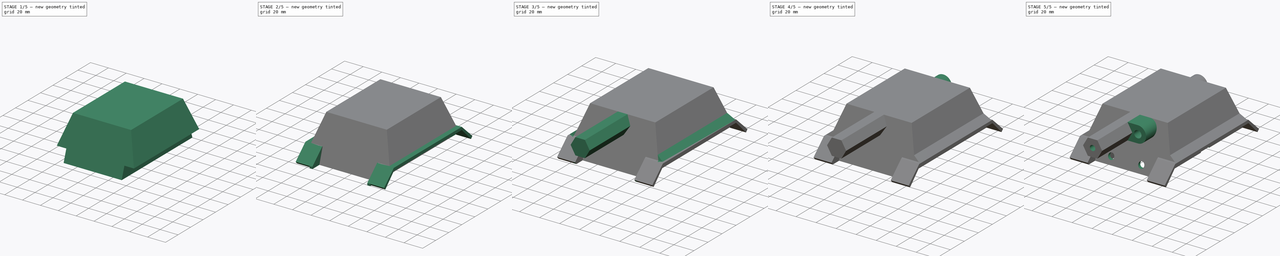
[diagram: build sequence overview — one tinted view per stage of 5, left to right]
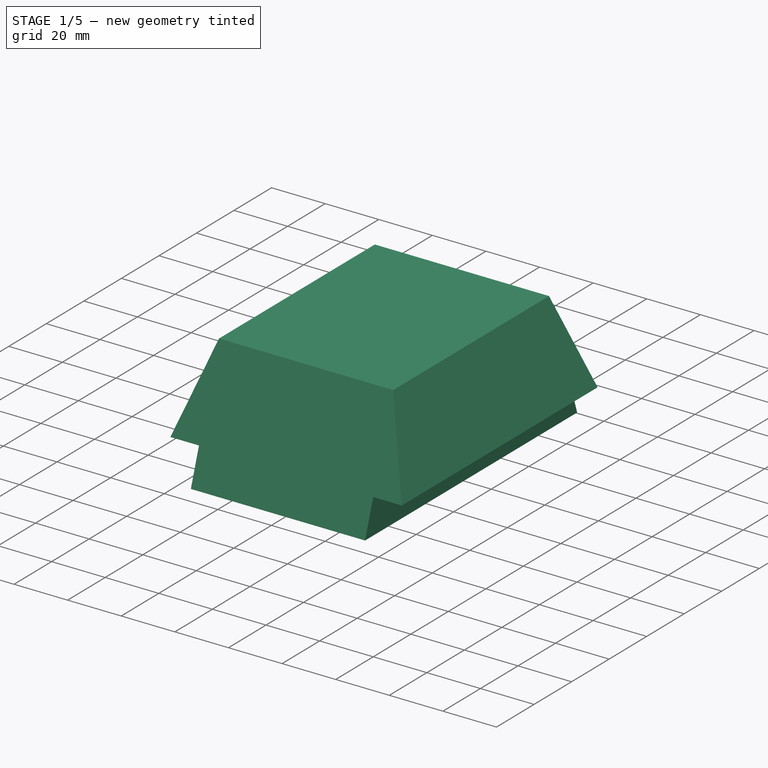
[diagram: stage 1 of 5 — iso view after this stage's code; geometry added in this stage tinted green]
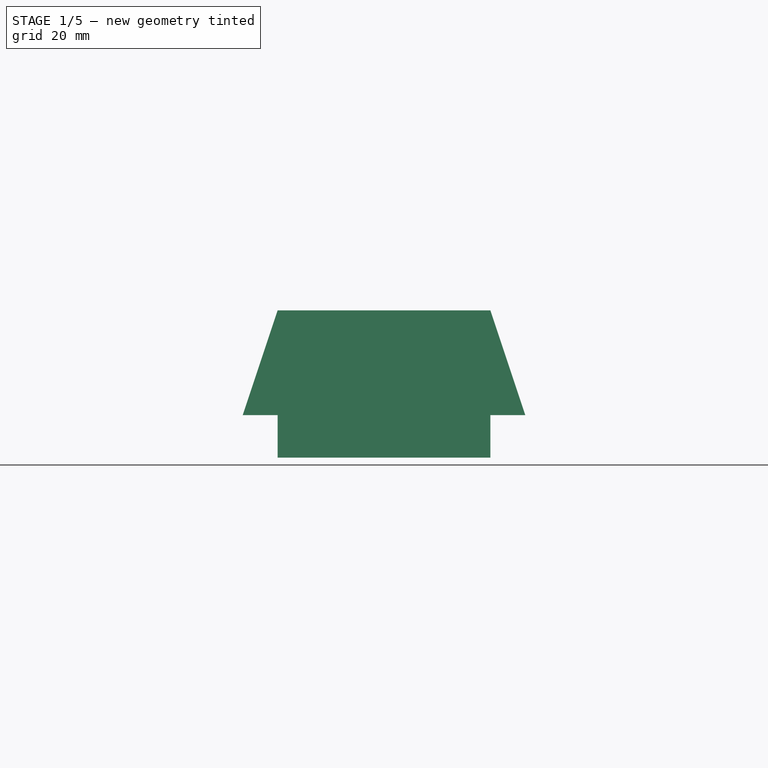
[diagram: stage 1 of 5 — front view after this stage's code; geometry added in this stage tinted green]
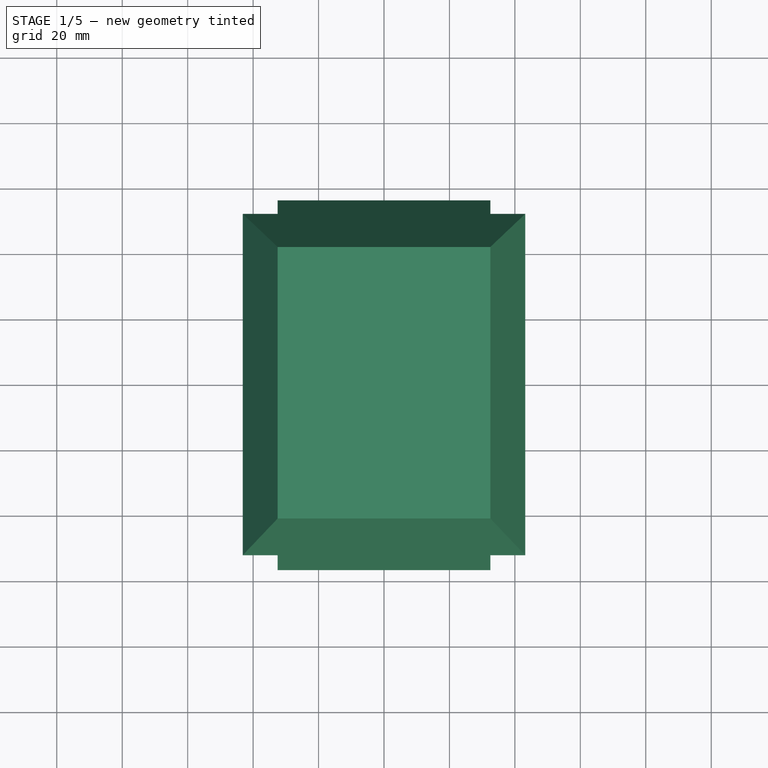
[diagram: stage 1 of 5 — top view after this stage's code; geometry added in this stage tinted green]
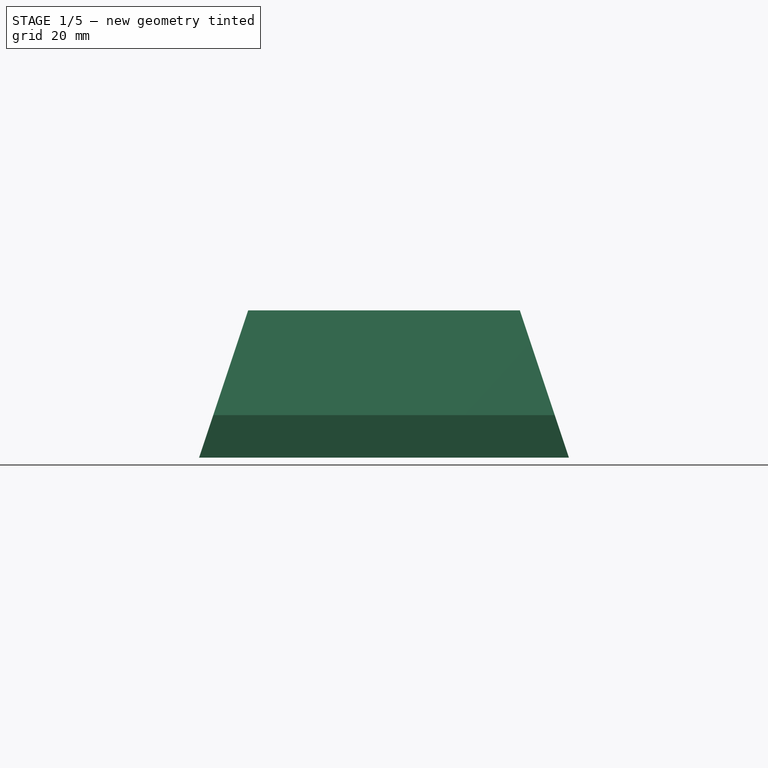
[diagram: stage 1 of 5 — right view after this stage's code; geometry added in this stage tinted green]
FCSTD DOCUMENT  (FreeCAD 0.17R13541 (Git))
Label: Body For Laser Tanks
License: All rights reserved
LicenseURL: http://en.wikipedia.org/wiki/All_rights_reserved
objects: Sketcher::SketchObject×22, PartDesign::Pocket×20, PartDesign::Mirrored×10, PartDesign::Pad×9, PartDesign::Chamfer×6, PartDesign::Plane×3, PartDesign::Body×1
note: 100 computed .brp shape members not serialized (recipe doc carries the construction recipe); baked Part::Feature solids carry a one-line shape summary decoded from their .brp

FEATURE [Sketcher::SketchObject] Sketch
  MapMode = 5
  Support = -> [XY_Plane]
  sketch-geometry (4):
    g0: LineSegment StartX=-32.5 StartY=41.5 StartZ=0 EndX=32.5 EndY=41.5 EndZ=0
    g1: LineSegment StartX=32.5 StartY=41.5 StartZ=0 EndX=32.5 EndY=-41.5 EndZ=0
    g2: LineSegment StartX=32.5 StartY=-41.5 StartZ=0 EndX=-32.5 EndY=-41.5 EndZ=0
    g3: LineSegment StartX=-32.5 StartY=-41.5 StartZ=0 EndX=-32.5 EndY=41.5 EndZ=0
  constraints (12):
    c: Coincident(g0,g1)
    c: Coincident(g1,g2)
    c: Coincident(g2,g3)
    c: Coincident(g3,g0)
    c: Horizontal(g0)
    c: Horizontal(g2)
    c: Vertical(g1)
    c: Vertical(g3)
    c: DistanceX(g0,g0) = 65
    c: DistanceY(g1,g1) = 83
    c: DistanceX(g0,g-1) = 32.5
    c: DistanceY(g-1,g0) = 41.5
FEATURE [PartDesign::Pad] Pad
  Length = 45
  Length2 = 100
  Profile = -> Sketch
  Type = 0
FEATURE [Sketcher::SketchObject] Sketch001
  ExternalGeometry = -> [Pad]
  MapMode = 5
  Placement = pos=(-32.5,0,0) rot=(0.57735,-0.57735,-0.57735;2.0944rad)
  Support = -> [Pad]
  sketch-geometry (4):
    g0: LineSegment StartX=41.5 StartY=45 StartZ=0 EndX=-41.5 EndY=45 EndZ=0
    g1: LineSegment StartX=-41.5 StartY=45 StartZ=0 EndX=-41.5 EndY=13 EndZ=0
    g2: LineSegment StartX=-41.5 StartY=13 StartZ=0 EndX=41.5 EndY=13 EndZ=0
    g3: LineSegment StartX=41.5 StartY=13 StartZ=0 EndX=41.5 EndY=45 EndZ=0
  constraints (11):
    c: Coincident(g0,g1)
    c: Coincident(g1,g2)
    c: Coincident(g2,g3)
    c: Coincident(g3,g0)
    c: Horizontal(g0)
    c: Horizontal(g2)
    c: Vertical(g1)
    c: Vertical(g3)
    c: Coincident(g0,g-3)
    c: PointOnObject(g1,g-4)
    c: DistanceY(g-4,g1) = 13
FEATURE [PartDesign::Pad] Pad001
  BaseFeature = -> Pad
  Length = 15
  Length2 = 100
  Profile = -> Sketch001
  Type = 0
FEATURE [PartDesign::Mirrored] Mirrored
  BaseFeature = -> Pad001
  MirrorPlane = -> YZ_Plane
  Originals = -> [Pad001]
FEATURE [Sketcher::SketchObject] Sketch002
  ExternalGeometry = -> [Mirrored]
  MapMode = 5
  Placement = pos=(0,-41.5,0) rot=(1,0,0;1.5708rad)
  Support = -> [Mirrored]
  sketch-geometry (8):
    g0: LineSegment StartX=-47.5 StartY=45 StartZ=0 EndX=47.5 EndY=45 EndZ=0
    g1: LineSegment StartX=47.5 StartY=45 StartZ=0 EndX=47.5 EndY=13 EndZ=0
    g2: LineSegment StartX=47.5 StartY=13 StartZ=0 EndX=32.5 EndY=13 EndZ=0
    g3: LineSegment StartX=32.5 StartY=13 StartZ=0 EndX=32.5 EndY=0 EndZ=0
    g4: LineSegment StartX=32.5 StartY=0 StartZ=0 EndX=-32.5 EndY=0 EndZ=0
    g5: LineSegment StartX=-32.5 StartY=0 StartZ=0 EndX=-32.5 EndY=13 EndZ=0
    g6: LineSegment StartX=-32.5 StartY=13 StartZ=0 EndX=-47.5 EndY=13 EndZ=0
    g7: LineSegment StartX=-47.5 StartY=13 StartZ=0 EndX=-47.5 EndY=45 EndZ=0
  constraints (16):
    c: Coincident(g-4,g0)
    c: Coincident(g0,g-8)
    c: Coincident(g0,g1)
    c: Coincident(g1,g-9)
    c: Coincident(g1,g2)
    c: Coincident(g2,g-9)
    c: Coincident(g2,g3)
    c: Coincident(g3,g-7)
    c: Coincident(g3,g4)
    c: Coincident(g4,g-7)
    c: Coincident(g4,g5)
    c: Coincident(g5,g-6)
    c: Coincident(g5,g6)
    c: Coincident(g6,g-5)
    c: Coincident(g6,g7)
    c: Coincident(g7,g0)
FEATURE [PartDesign::Pad] Pad002
  BaseFeature = -> Mirrored
  Length = 15
  Length2 = 100
  Profile = -> Sketch002
  Type = 0
FEATURE [PartDesign::Mirrored] Mirrored001
  BaseFeature = -> Pad002
  MirrorPlane = -> XZ_Plane
  Originals = -> [Pad002]
FEATURE [Sketcher::SketchObject] Sketch003
  ExternalGeometry = -> [Mirrored001]
  MapMode = 5
  Placement = pos=(-47.5,0,0) rot=(0.57735,-0.57735,-0.57735;2.0944rad)
  Support = -> [Mirrored001]
  sketch-geometry (3):
    g0: LineSegment StartX=41.5 StartY=45 StartZ=0 EndX=56.5 EndY=0 EndZ=0
    g1: LineSegment StartX=56.5 StartY=0 StartZ=0 EndX=69.9735 EndY=50.8631 EndZ=0
    g2: LineSegment StartX=69.9735 StartY=50.8631 StartZ=0 EndX=41.5 EndY=45 EndZ=0
  constraints (5):
    c: Coincident(g-4,g0)
    c: Coincident(g0,g-3)
    c: Coincident(g0,g1)
    c: Coincident(g1,g2)
    c: Coincident(g2,g0)
FEATURE [PartDesign::Pocket] Pocket
  BaseFeature = -> Mirrored001
  Length = 5
  Length2 = 100
  Profile = -> Sketch003
  Type = 1
FEATURE [PartDesign::Mirrored] Mirrored002
  BaseFeature = -> Pocket
  MirrorPlane = -> XZ_Plane
  Originals = -> [Pocket]
FEATURE [Sketcher::SketchObject] Sketch004
  ExternalGeometry = -> [Mirrored002]
  MapMode = 5
  Placement = pos=(0,0,0) rot=(1,0,0;1.5708rad)
  Support = -> [XZ_Plane]
  sketch-geometry (8):
    g0: LineSegment [constr] StartX=-47.5 StartY=13 StartZ=0 EndX=-32.5 EndY=13 EndZ=0
    g1: LineSegment [constr] StartX=-32.5 StartY=13 StartZ=0 EndX=-32.5 EndY=0 EndZ=0
    g2: LineSegment [constr] StartX=-32.5 StartY=0 StartZ=0 EndX=-47.5 EndY=0 EndZ=0
    g3: LineSegment [constr] StartX=-47.5 StartY=0 StartZ=0 EndX=-47.5 EndY=13 EndZ=0
    g4: LineSegment StartX=-32.5 StartY=45 StartZ=0 EndX=-47.5 EndY=0 EndZ=0
    g5: LineSegment StartX=-47.5 StartY=0 StartZ=0 EndX=-68.9723 EndY=31.0598 EndZ=0
    g6: LineSegment StartX=-68.9723 StartY=31.0598 StartZ=0 EndX=-58.7908 EndY=51.0456 EndZ=0
    g7: LineSegment StartX=-58.7908 StartY=51.0456 StartZ=0 EndX=-32.5 EndY=45 EndZ=0
  constraints (16):
    c: Coincident(g0,g1)
    c: Coincident(g1,g2)
    c: Coincident(g2,g3)
    c: Coincident(g3,g0)
    c: Horizontal(g0)
    c: Horizontal(g2)
    c: Vertical(g1)
    c: Vertical(g3)
    c: Coincident(g1,g-4)
    c: Coincident(g0,g-3)
    c: Coincident(g-5,g4)
    c: Coincident(g4,g2)
    c: Coincident(g4,g5)
    c: Coincident(g5,g6)
    c: Coincident(g6,g7)
    c: Coincident(g7,g4)
FEATURE [PartDesign::Pocket] Pocket001
  BaseFeature = -> Mirrored002
  Length = 500
  Length2 = 100
  Profile = -> Sketch004
  Type = 4
FEATURE [PartDesign::Mirrored] Mirrored003
  BaseFeature = -> Pocket001
  MirrorPlane = -> YZ_Plane
  Originals = -> [Pocket001]
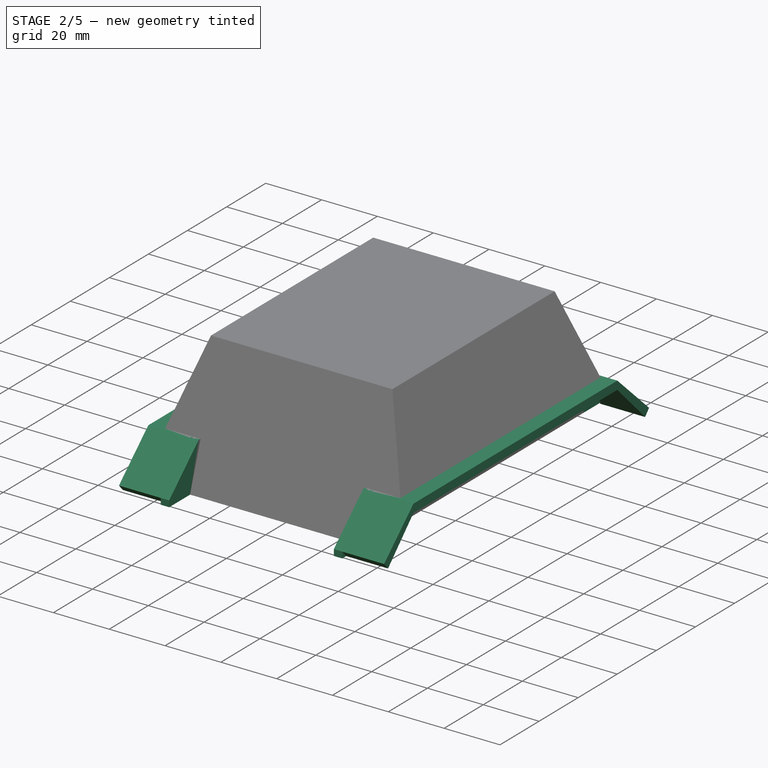
[diagram: stage 2 of 5 — iso view after this stage's code; geometry added in this stage tinted green]
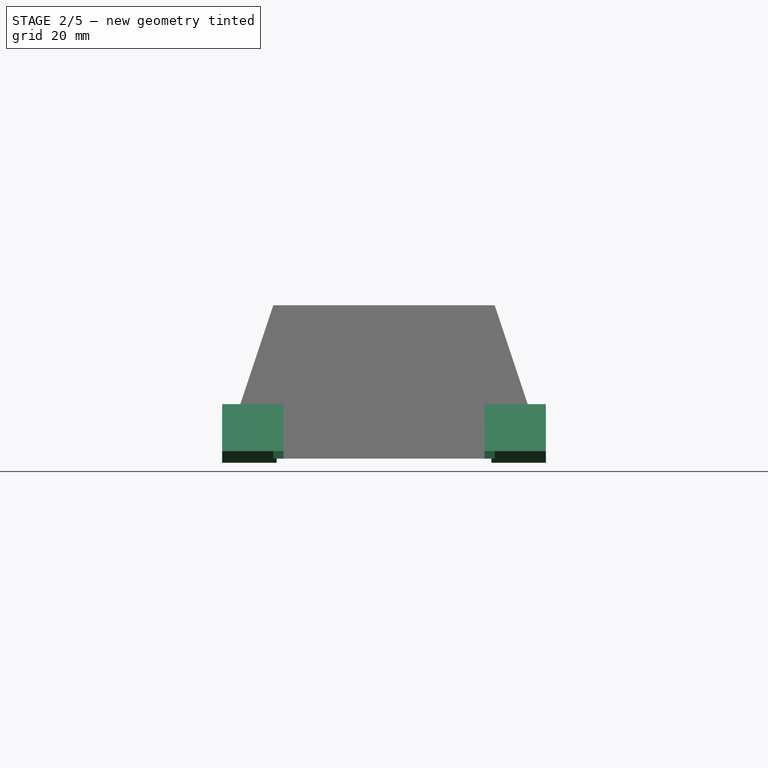
[diagram: stage 2 of 5 — front view after this stage's code; geometry added in this stage tinted green]
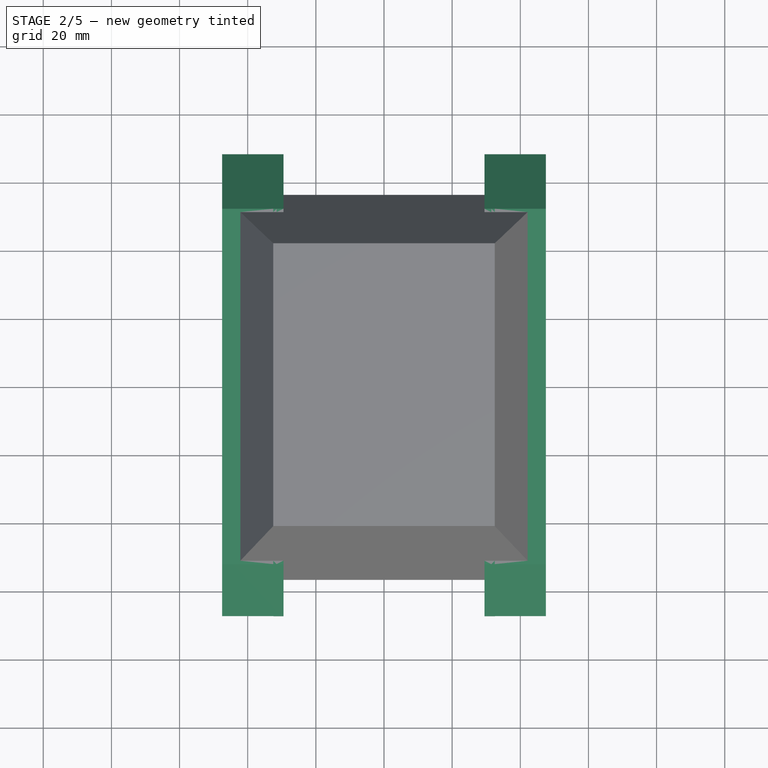
[diagram: stage 2 of 5 — top view after this stage's code; geometry added in this stage tinted green]
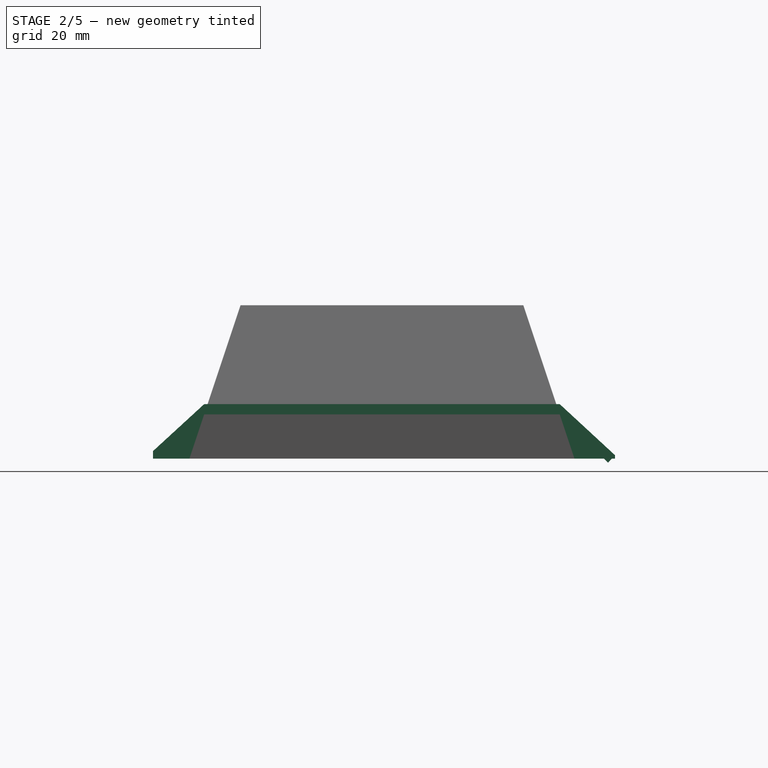
[diagram: stage 2 of 5 — right view after this stage's code; geometry added in this stage tinted green]
FEATURE [PartDesign::Plane] DatumPlane
  AttachmentOffset = pos=(0,4,15) rot=(0,0,1;0rad)
  MapMode = 5
  Placement = pos=(-47.5,0,4) rot=(0.57735,-0.57735,-0.57735;2.0944rad)
  Support = -> [Mirrored003]
FEATURE [Sketcher::SketchObject] Sketch006
  ExternalGeometry = -> [Mirrored003]
  MapMode = 5
  Placement = pos=(-47.5,0,4) rot=(0.57735,-0.57735,-0.57735;2.0944rad)
  Support = -> [DatumPlane]
  sketch-geometry (8):
    g0: LineSegment StartX=-68.4011 StartY=-2.99516 StartZ=0 EndX=-52.1667 EndY=12 EndZ=0
    g1: LineSegment StartX=-52.1667 StartY=12 StartZ=0 EndX=52.1667 EndY=12 EndZ=0
    g2: LineSegment StartX=52.1667 StartY=12 StartZ=0 EndX=67.1949 EndY=-1.78954 EndZ=0
    g3: LineSegment StartX=67.1949 StartY=-1.78954 StartZ=0 EndX=65.1667 EndY=-4 EndZ=0
    g4: LineSegment StartX=65.1667 StartY=-4 StartZ=0 EndX=52.1667 EndY=9 EndZ=0
    g5: LineSegment StartX=52.1667 StartY=9 StartZ=0 EndX=-52.1667 EndY=9 EndZ=0
    g6: LineSegment StartX=-52.1667 StartY=9 StartZ=0 EndX=-66.3656 EndY=-5.19893 EndZ=0
    g7: LineSegment StartX=-66.3656 StartY=-5.19893 StartZ=0 EndX=-68.4011 EndY=-2.99516 EndZ=0
  constraints (22):
    c: Coincident(g0,g1)
    c: Horizontal(g1)
    c: Coincident(g1,g2)
    c: Coincident(g2,g3)
    c: Coincident(g3,g4)
    c: Coincident(g4,g5)
    c: Horizontal(g5)
    c: Coincident(g5,g6)
    c: Coincident(g6,g7)
    c: Coincident(g7,g0)
    c: Coincident(g5,g-5)
    c: Coincident(g-3,g4)
    c: DistanceX(g1,g4) = 0
    c: DistanceX(g0,g5) = 0
    c: Perpendicular(g3,g2)
    c: Perpendicular(g0,g7)
    c: DistanceY(g5,g0) = 3
    c: DistanceY(g3,g-7) = 0
    c: Distance(g0,g6) = 3
    c: Distance(g2,g3) = 3
    c: Angle(g6,g5) = 2.35619
    c: Angle(g5,g4) = 2.35619
FEATURE [PartDesign::Pad] Pad003
  BaseFeature = -> Mirrored003
  Length = 16
  Length2 = 100
  Profile = -> Sketch006
  Reversed = true
  Type = 0
FEATURE [Sketcher::SketchObject] Sketch007
  ExternalGeometry = -> [Pad003]
  MapMode = 5
  Placement = pos=(0,0,0) rot=(1,0,0;3.14159rad)
  Support = -> [Pad003]
  sketch-geometry (4):
    g0: LineSegment StartX=-32.5 StartY=-68.4011 StartZ=0 EndX=-29.5 EndY=-68.4011 EndZ=0
    g1: LineSegment StartX=-29.5 StartY=-68.4011 StartZ=0 EndX=-29.5 EndY=67.1949 EndZ=0
    g2: LineSegment StartX=-29.5 StartY=67.1949 StartZ=0 EndX=-32.5 EndY=67.1949 EndZ=0
    g3: LineSegment StartX=-32.5 StartY=67.1949 StartZ=0 EndX=-32.5 EndY=-68.4011 EndZ=0
  constraints (12):
    c: Coincident(g0,g1)
    c: Coincident(g1,g2)
    c: Coincident(g2,g3)
    c: Coincident(g3,g0)
    c: Horizontal(g0)
    c: Horizontal(g2)
    c: Vertical(g1)
    c: Vertical(g3)
    c: PointOnObject(g0,g-5)
    c: PointOnObject(g2,g-7)
    c: DistanceX(g2,g-6) = 0
    c: DistanceX(g2,g2) = 3
FEATURE [PartDesign::Pad] Pad004
  BaseFeature = -> Pad003
  Length = 17
  Length2 = 100
  Profile = -> Sketch007
  Reversed = true
  Type = 3
  UpToFace = -> Pad003 [Face13]
FEATURE [PartDesign::Pocket] Pocket002
  BaseFeature = -> Pad004
  Length = 5
  Length2 = 100
  Profile = -> Pad004 [Face41]
  Type = 1
FEATURE [PartDesign::Pocket] Pocket003
  BaseFeature = -> Pocket002
  Length = 5
  Length2 = 100
  Profile = -> Pocket002 [Face27]
  Type = 0
FEATURE [PartDesign::Mirrored] Mirrored004
  BaseFeature = -> Pocket003
  MirrorPlane = -> YZ_Plane
  Originals = -> [Pad003]
FEATURE [PartDesign::Mirrored] Mirrored005
  BaseFeature = -> Mirrored004
  MirrorPlane = -> YZ_Plane
  Originals = -> [Pad004]
FEATURE [PartDesign::Mirrored] Mirrored006
  BaseFeature = -> Mirrored005
  MirrorPlane = -> YZ_Plane
  Originals = -> [Pocket002]
FEATURE [PartDesign::Mirrored] Mirrored007
  BaseFeature = -> Mirrored006
  MirrorPlane = -> YZ_Plane
  Originals = -> [Pocket003]
FEATURE [Sketcher::SketchObject] Sketch008
  ExternalGeometry = -> [Mirrored007]
  MapMode = 5
  Placement = pos=(0,0,0) rot=(1,0,0;3.14159rad)
  Support = -> [Mirrored007]
  sketch-geometry (6):
    g0: LineSegment StartX=-27 StartY=37.1006 StartZ=0 EndX=27 EndY=37.1006 EndZ=0
    g1: LineSegment StartX=27 StartY=37.1006 StartZ=0 EndX=27 EndY=-38.8994 EndZ=0
    g2: LineSegment StartX=27 StartY=-38.8994 StartZ=0 EndX=-27 EndY=-38.8994 EndZ=0
    g3: LineSegment StartX=-27 StartY=-38.8994 StartZ=0 EndX=-27 EndY=37.1006 EndZ=0
    g4: LineSegment [constr] StartX=32.5 StartY=-28.3547 StartZ=0 EndX=27 EndY=-28.3547 EndZ=0
    g5: LineSegment [constr] StartX=-27 StartY=-26.8184 StartZ=0 EndX=-32.5 EndY=-26.8184 EndZ=0
  constraints (17):
    c: Coincident(g0,g1)
    c: Coincident(g1,g2)
    c: Coincident(g2,g3)
    c: Coincident(g3,g0)
    c: Horizontal(g0)
    c: Horizontal(g2)
    c: Vertical(g1)
    c: Vertical(g3)
    c: DistanceX(g2,g2) = 54
    c: DistanceY(g3,g3) = 76
    c: PointOnObject(g4,g-5)
    c: PointOnObject(g4,g1)
    c: Horizontal(g4)
    c: PointOnObject(g5,g3)
    c: PointOnObject(g5,g-4)
    c: Horizontal(g5)
    c: Equal(g4,g5)
FEATURE [PartDesign::Pocket] Pocket004
  BaseFeature = -> Mirrored007
  Length = 35
  Length2 = 100
  Profile = -> Sketch008
  Type = 0
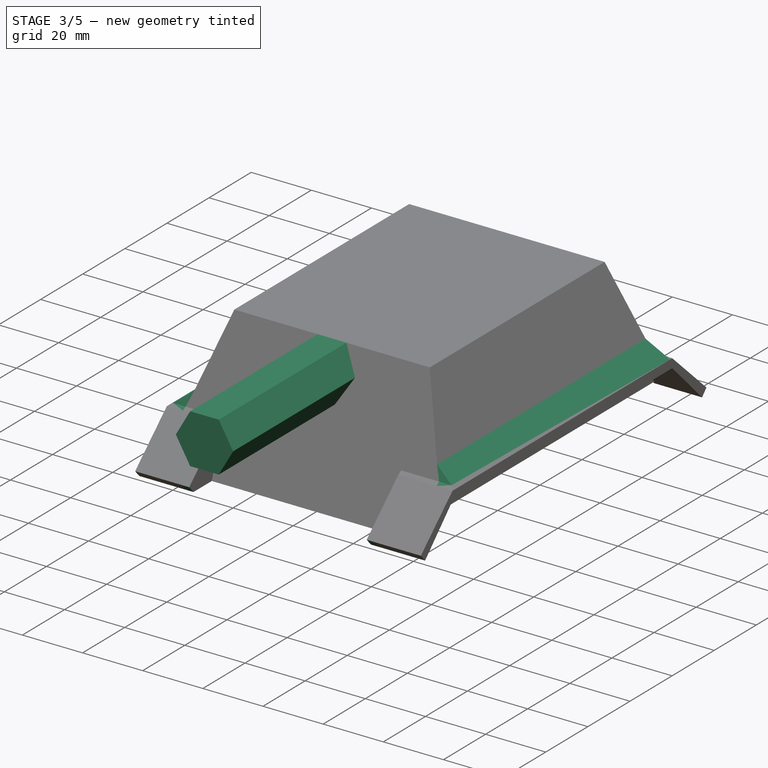
[diagram: stage 3 of 5 — iso view after this stage's code; geometry added in this stage tinted green]
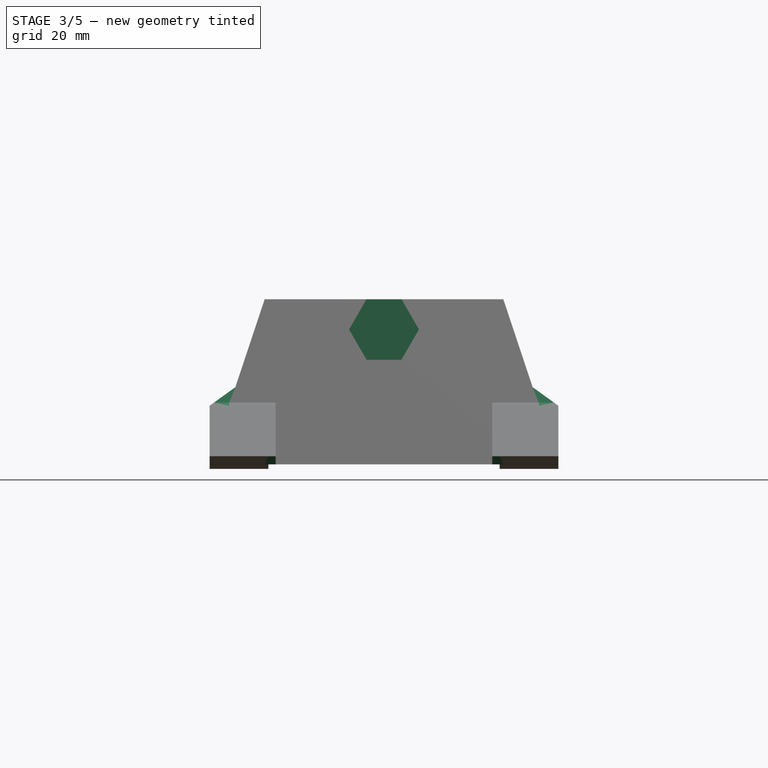
[diagram: stage 3 of 5 — front view after this stage's code; geometry added in this stage tinted green]
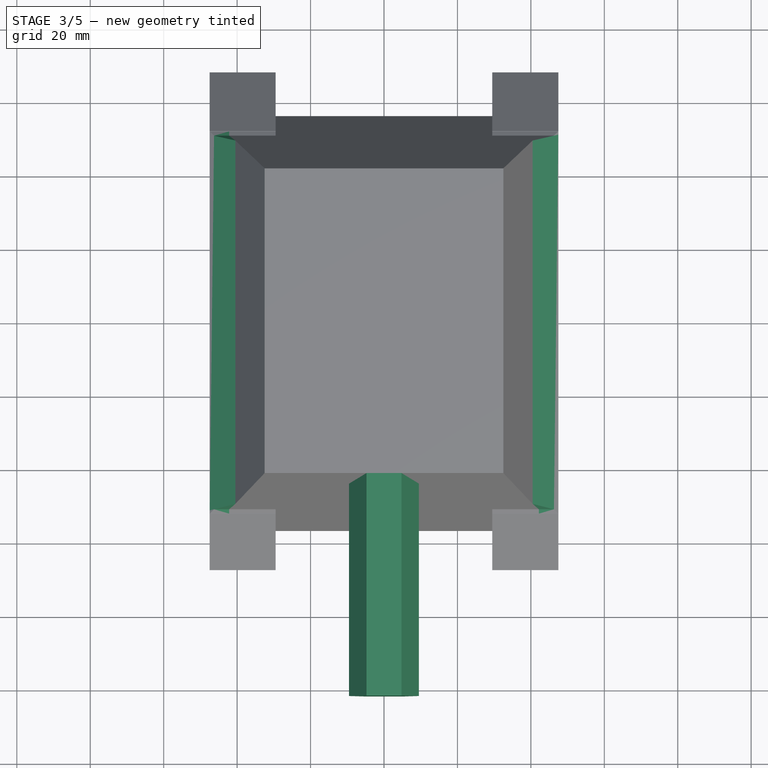
[diagram: stage 3 of 5 — top view after this stage's code; geometry added in this stage tinted green]
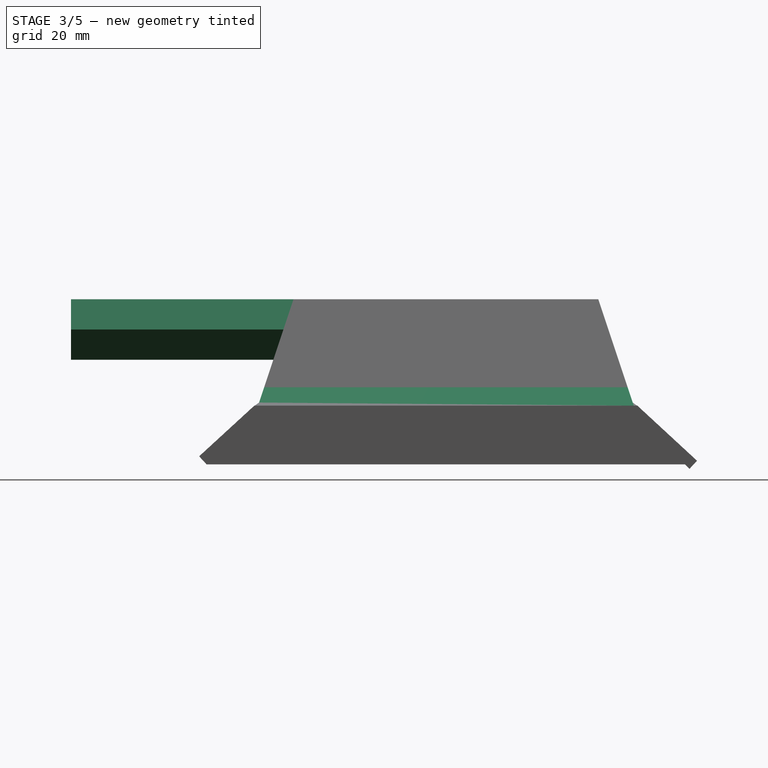
[diagram: stage 3 of 5 — right view after this stage's code; geometry added in this stage tinted green]
FEATURE [Sketcher::SketchObject] Sketch009
  ExternalGeometry = -> [Pocket004]
  MapMode = 5
  Placement = pos=(0,-37.1006,0) rot=(0,0.707107,0.707107;3.14159rad)
  Support = -> [Pocket004]
  sketch-geometry (7):
    g0: LineSegment StartX=-4.75768 StartY=45 StartZ=0 EndX=-9.51536 EndY=36.7595 EndZ=0
    g1: LineSegment StartX=-9.51536 StartY=36.7595 StartZ=0 EndX=-4.75768 EndY=28.5189 EndZ=0
    g2: LineSegment StartX=-4.75768 StartY=28.5189 StartZ=0 EndX=4.75768 EndY=28.5189 EndZ=0
    g3: LineSegment StartX=4.75768 StartY=28.5189 StartZ=0 EndX=9.51536 EndY=36.7595 EndZ=0
    g4: LineSegment StartX=9.51536 StartY=36.7595 StartZ=0 EndX=4.75768 EndY=45 EndZ=0
    g5: LineSegment StartX=4.75768 StartY=45 StartZ=0 EndX=-4.75768 EndY=45 EndZ=0
    g6: Circle [constr] CenterX=0 CenterY=36.7595 CenterZ=0 NormalX=0 NormalY=0 NormalZ=1 AngleXU=0 Radius=9.51536
  constraints (16):
    c: Coincident(g0,g1)
    c: Coincident(g1,g2)
    c: Coincident(g2,g3)
    c: Coincident(g3,g4)
    c: Coincident(g4,g5)
    c: Coincident(g5,g0)
    c: Equal(g0, g1-g5) x5
    c: PointOnObject(g0,g6)
    c: PointOnObject(g1,g6)
    c: PointOnObject(g2,g6)
    c: PointOnObject(g3,g6)
    c: PointOnObject(g4,g6)
    c: PointOnObject(g5,g6)
    c: PointOnObject(g6,g-2)
    c: PointOnObject(g0,g-3)
    c: PointOnObject(g4,g-3)
FEATURE [PartDesign::Pad] Pad005
  BaseFeature = -> Pocket004
  Length = 65
  Length2 = 100
  Profile = -> Sketch009
  Reversed = true
  Type = 0
FEATURE [PartDesign::Chamfer] Chamfer
  Base = -> Pad005 [Edge110]
  BaseFeature = -> Pad005
  Size = 5.3
FEATURE [PartDesign::Chamfer] Chamfer001
  Base = -> Chamfer [Edge63]
  BaseFeature = -> Chamfer
  Size = 5.3
FEATURE [PartDesign::Chamfer] Chamfer002
  Base = -> Chamfer001 [Edge4,Edge6,Edge8,Edge10]
  BaseFeature = -> Chamfer001
  Size = 0.8999
FEATURE [PartDesign::Chamfer] Chamfer003
  Base = -> Chamfer002 [Edge18,Edge20,Edge22,Edge23]
  BaseFeature = -> Chamfer002
  Size = 0.899
FEATURE [PartDesign::Chamfer] Chamfer004
  Base = -> Chamfer003 [Edge91,Edge90,Edge89,Edge88]
  BaseFeature = -> Chamfer003
  Size = 0.8999
FEATURE [PartDesign::Chamfer] Chamfer005
  Base = -> Chamfer004 [Edge18,Edge20,Edge22,Edge24]
  BaseFeature = -> Chamfer004
  Size = 0.8999
FEATURE [PartDesign::Pocket] Pocket005
  BaseFeature = -> Chamfer005
  Length = 5
  Length2 = 100
  Profile = -> Chamfer005 [Face72]
  Type = 1
FEATURE [PartDesign::Pocket] Pocket006
  BaseFeature = -> Pocket005
  Length = 5
  Length2 = 100
  Profile = -> Pocket005 [Face105]
  Type = 1
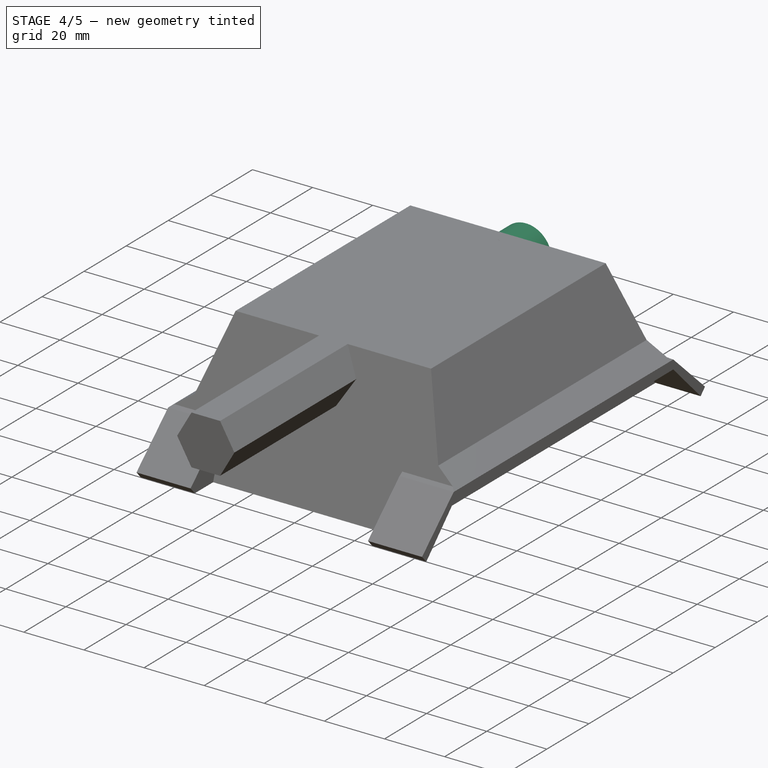
[diagram: stage 4 of 5 — iso view after this stage's code; geometry added in this stage tinted green]
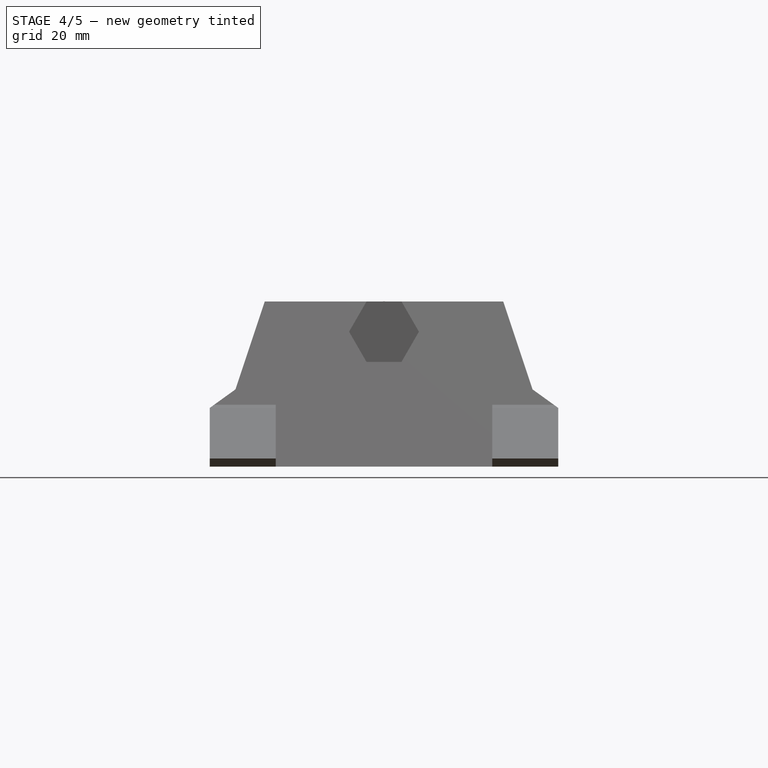
[diagram: stage 4 of 5 — front view after this stage's code; geometry added in this stage tinted green]
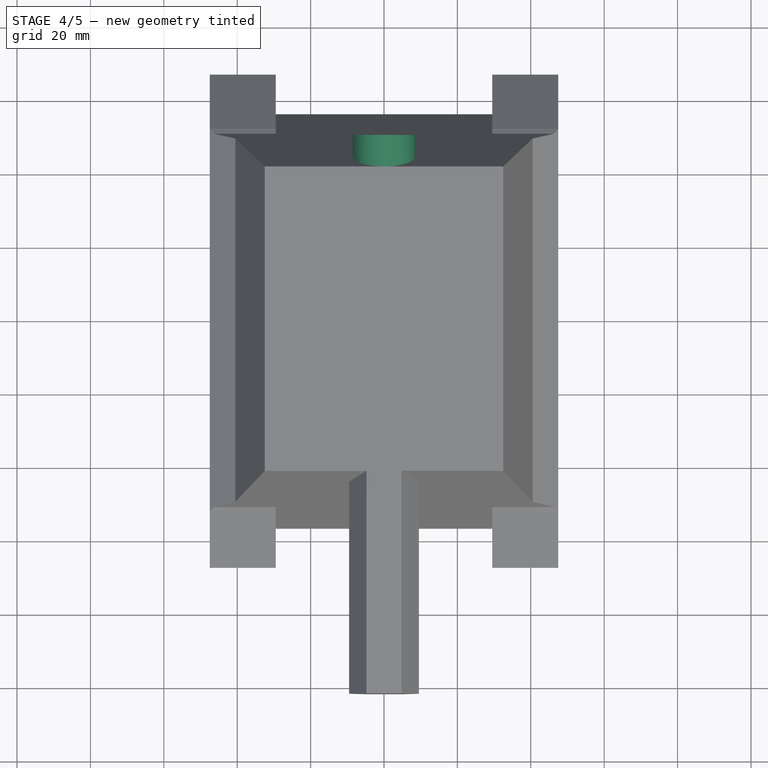
[diagram: stage 4 of 5 — top view after this stage's code; geometry added in this stage tinted green]
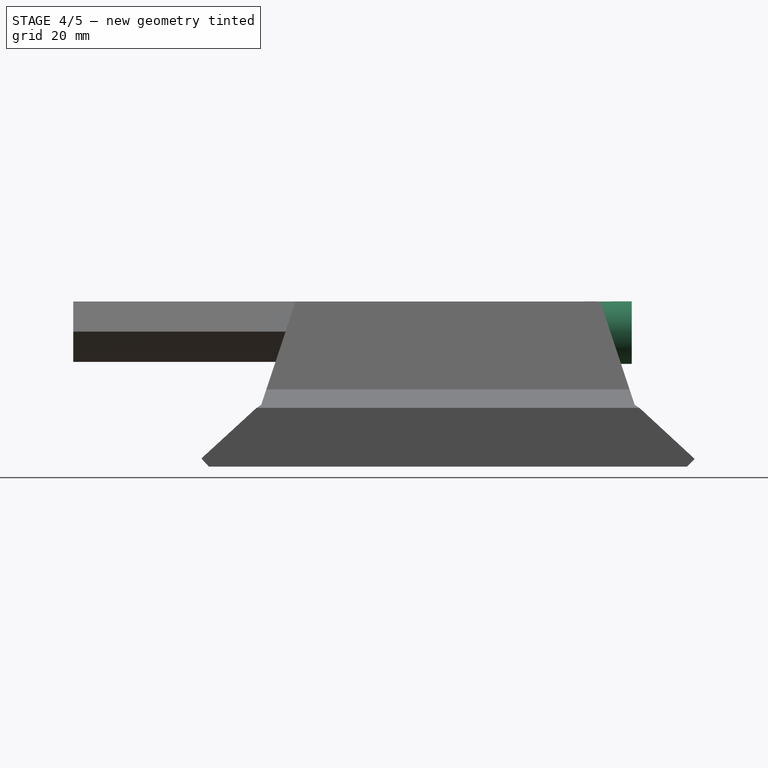
[diagram: stage 4 of 5 — right view after this stage's code; geometry added in this stage tinted green]
FEATURE [PartDesign::Pocket] Pocket007
  BaseFeature = -> Pocket006
  Length = 10000
  Length2 = 100
  Profile = -> Pocket006 [Face73]
  Type = 4
FEATURE [Sketcher::SketchObject] Sketch011
  ExternalGeometry = -> [Pocket007]
  MapMode = 5
  Placement = pos=(47.5,0,0) rot=(0.57735,0.57735,0.57735;2.0944rad)
  Support = -> [Pocket007]
  sketch-geometry (4):
    g0: LineSegment StartX=65.1667 StartY=0 StartZ=0 EndX=68.8182 EndY=3.65149 EndZ=0
    g1: LineSegment StartX=68.8182 StartY=3.65149 StartZ=0 EndX=70.9853 EndY=1.01334 EndZ=0
    g2: LineSegment StartX=70.9853 StartY=1.01334 StartZ=0 EndX=68.5176 EndY=-0.789946 EndZ=0
    g3: LineSegment StartX=68.5176 StartY=-0.789946 StartZ=0 EndX=65.1667 EndY=0 EndZ=0
  constraints (6):
    c: Coincident(g-4,g0)
    c: Coincident(g0,g1)
    c: Coincident(g1,g2)
    c: Coincident(g2,g3)
    c: Coincident(g3,g0)
    c: Perpendicular(g-3,g0)
FEATURE [PartDesign::Pocket] Pocket008
  BaseFeature = -> Pocket007
  Length = 5
  Length2 = 100
  Profile = -> Sketch011
  Type = 1
FEATURE [Sketcher::SketchObject] Sketch012
  ExternalGeometry = -> [Pocket008]
  MapMode = 5
  Placement = pos=(0,0,0) rot=(1,0,0;3.14159rad)
  Support = -> [Pocket008]
  sketch-geometry (4):
    g0: LineSegment StartX=-32.5 StartY=-5.89944 StartZ=0 EndX=-27 EndY=-5.89944 EndZ=0
    g1: LineSegment StartX=-27 StartY=-5.89944 StartZ=0 EndX=-27 EndY=-17.8994 EndZ=0
    g2: LineSegment StartX=-27 StartY=-17.8994 StartZ=0 EndX=-32.5 EndY=-17.8994 EndZ=0
    g3: LineSegment StartX=-32.5 StartY=-17.8994 StartZ=0 EndX=-32.5 EndY=-5.89944 EndZ=0
  constraints (12):
    c: Coincident(g0,g1)
    c: Coincident(g1,g2)
    c: Coincident(g2,g3)
    c: Coincident(g3,g0)
    c: Horizontal(g0)
    c: Horizontal(g2)
    c: Vertical(g1)
    c: Vertical(g3)
    c: PointOnObject(g0,g-3)
    c: PointOnObject(g1,g-4)
    c: DistanceY(g-4,g1) = 21
    c: DistanceY(g3,g3) = 12
FEATURE [PartDesign::Pocket] Pocket009
  BaseFeature = -> Pocket008
  Length = 5
  Length2 = 100
  Profile = -> Sketch012
  Type = 0
FEATURE [Sketcher::SketchObject] Sketch013
  ExternalGeometry = -> [Pocket009]
  MapMode = 5
  Placement = pos=(0,0,0) rot=(0.57735,0.57735,0.57735;2.0944rad)
  Support = -> [YZ_Plane]
  sketch-geometry (4):
    g0: LineSegment StartX=-37.1006 StartY=35 StartZ=0 EndX=-41.463 EndY=35 EndZ=0
    g1: LineSegment StartX=-41.463 StartY=35 StartZ=0 EndX=-53.6077 EndY=0 EndZ=0
    g2: LineSegment StartX=-53.6077 StartY=0 StartZ=0 EndX=-37.1006 EndY=0 EndZ=0
    g3: LineSegment StartX=-37.1006 StartY=35 StartZ=0 EndX=-37.1006 EndY=0 EndZ=0
  constraints (8):
    c: Coincident(g-3,g0)
    c: Horizontal(g0)
    c: Coincident(g0,g1)
    c: PointOnObject(g1,g-4)
    c: Coincident(g1,g2)
    c: Coincident(g2,g-3)
    c: Coincident(g0,g3)
    c: Coincident(g3,g2)
FEATURE [PartDesign::Pocket] Pocket010
  BaseFeature = -> Pocket009
  Length = 20
  Length2 = 20
  Profile = -> Sketch013
  Type = 4
FEATURE [PartDesign::Mirrored] Mirrored008
  BaseFeature = -> Pocket010
  MirrorPlane = -> XZ_Plane
  Originals = -> [Pocket010]
FEATURE [PartDesign::Pocket] Pocket011
  BaseFeature = -> Mirrored008
  Length = 6
  Length2 = 100
  Profile = -> Mirrored008 [Face101]
  Type = 0
FEATURE [Sketcher::SketchObject] Sketch014
  ExternalGeometry = -> [Pocket011]
  MapMode = 5
  Placement = pos=(0,37.1006,0) rot=(1,0,0;1.5708rad)
  Support = -> [Pocket011]
  sketch-geometry (1):
    g0: Circle CenterX=0 CenterY=36.4884 CenterZ=0 NormalX=0 NormalY=0 NormalZ=1 AngleXU=0 Radius=8.51863
  constraints (1):
    c: PointOnObject(g0,g-2)
FEATURE [PartDesign::Pad] Pad006
  BaseFeature = -> Pocket011
  Length = 13
  Length2 = 100
  Profile = -> Sketch014
  Reversed = true
  Type = 0
FEATURE [Sketcher::SketchObject] Sketch015
  ExternalGeometry = -> [Pad006]
  MapMode = 5
  Placement = pos=(0,50.1006,0) rot=(0,0.707107,0.707107;3.14159rad)
  Support = -> [Pad006]
  sketch-geometry (1):
    g0: Circle CenterX=0 CenterY=36.4884 CenterZ=0 NormalX=0 NormalY=0 NormalZ=1 AngleXU=0 Radius=3.5
  constraints (2):
    c: Coincident(g0,g-3)
    c: Radius(g0) = 3.5
FEATURE [PartDesign::Pocket] Pocket012
  BaseFeature = -> Pad006
  Length = 15
  Length2 = 100
  Profile = -> Sketch015
  Type = 0
FEATURE [Sketcher::SketchObject] Sketch016
  ExternalGeometry = -> [Pocket012]
  MapMode = 5
  Placement = pos=(0,-102.101,0) rot=(1,0,0;1.5708rad)
  Support = -> [Pocket012]
  sketch-geometry (3):
    g0: Circle CenterX=0 CenterY=57.9669 CenterZ=0 NormalX=0 NormalY=0 NormalZ=1 AngleXU=0 Radius=0.75
    g1: LineSegment [constr] StartX=-32.5 StartY=67.1949 StartZ=0 EndX=0 EndY=57.9669 EndZ=0
    g2: LineSegment [constr] StartX=0 StartY=57.9669 StartZ=0 EndX=29.5 EndY=41.5 EndZ=0
  constraints (7):
    c: PointOnObject(g0,g-2)
    c: Radius(g0) = 0.75
    c: Coincident(g1,g-3)
    c: Coincident(g1,g0)
    c: Coincident(g2,g0)
    c: Coincident(g2,g-4)
    c: Equal(g1,g2)
FEATURE [PartDesign::Pocket] Pocket013
  BaseFeature = -> Pocket012
  Length = 40
  Length2 = 100
  Profile = -> Sketch016
  Type = 0
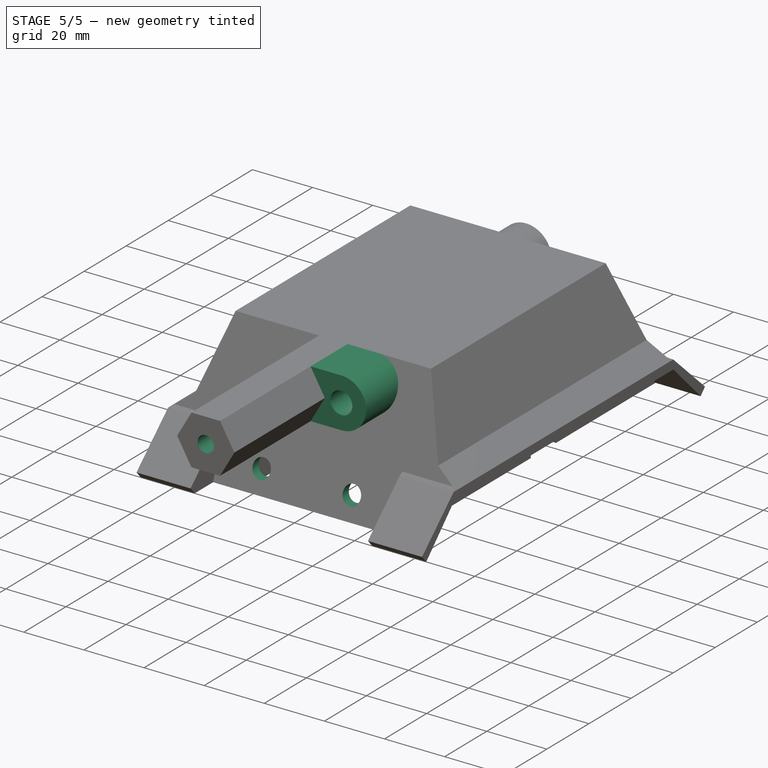
[diagram: stage 5 of 5 — iso view after this stage's code; geometry added in this stage tinted green]
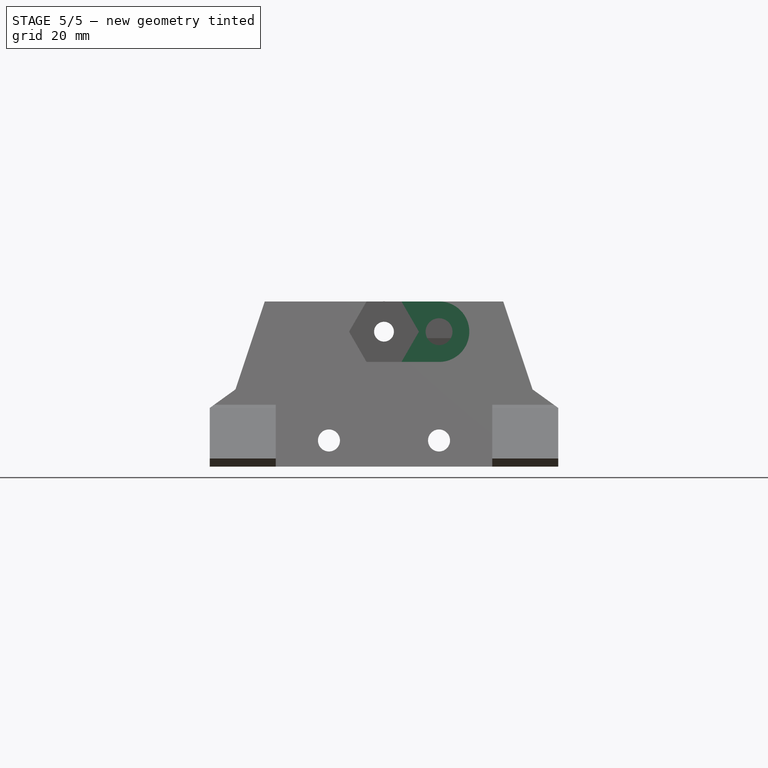
[diagram: stage 5 of 5 — front view after this stage's code; geometry added in this stage tinted green]
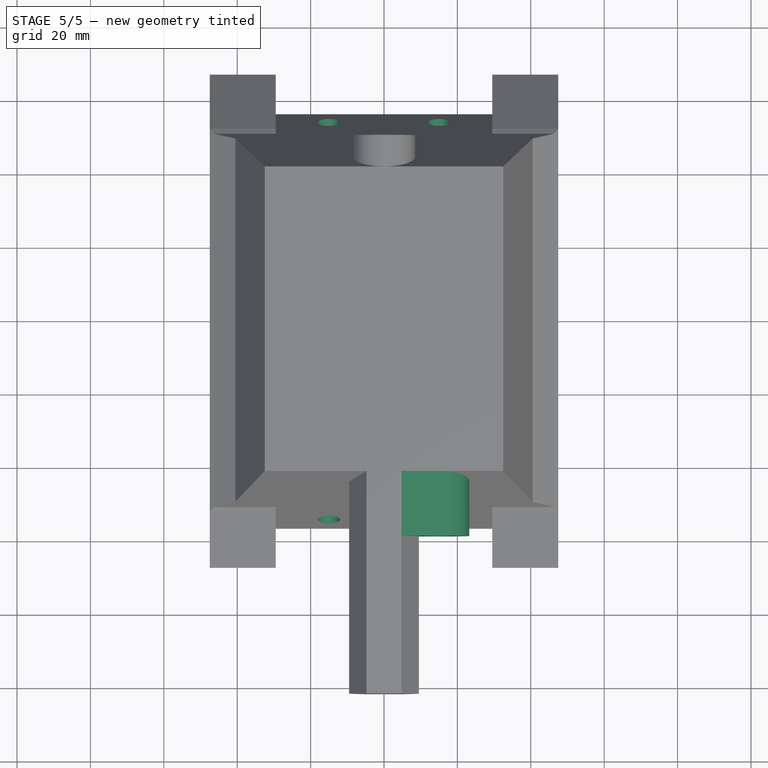
[diagram: stage 5 of 5 — top view after this stage's code; geometry added in this stage tinted green]
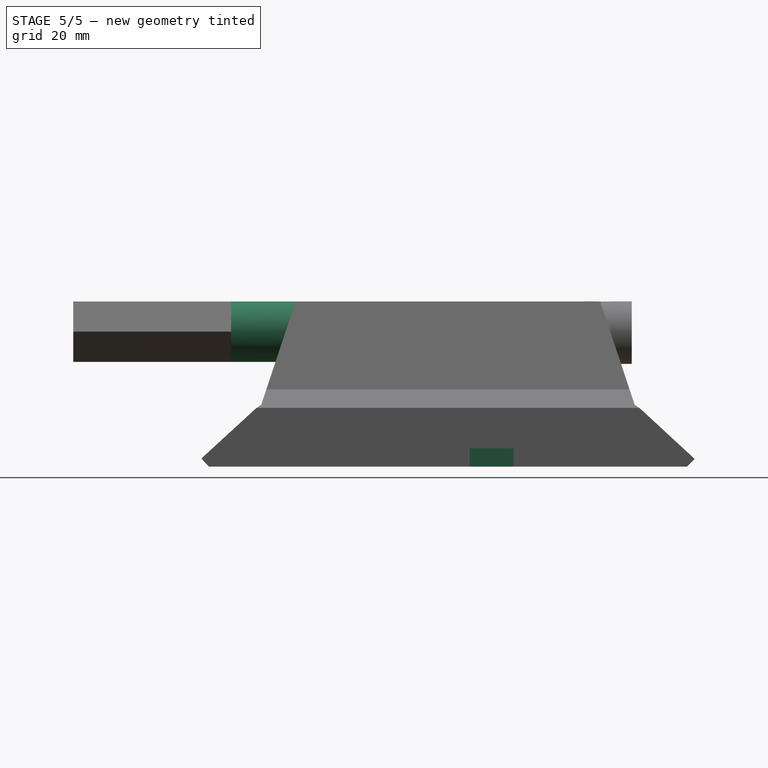
[diagram: stage 5 of 5 — right view after this stage's code; geometry added in this stage tinted green]
FEATURE [Sketcher::SketchObject] Sketch018
  MapMode = 5
  Placement = pos=(0,0,0) rot=(1,0,0;3.14159rad)
  sketch-geometry (4):
    g0: LineSegment StartX=27 StartY=-5.89944 StartZ=0 EndX=32.5 EndY=-5.89944 EndZ=0
    g1: LineSegment StartX=32.5 StartY=-5.89944 StartZ=0 EndX=32.5 EndY=-17.8994 EndZ=0
    g2: LineSegment StartX=32.5 StartY=-17.8994 StartZ=0 EndX=27 EndY=-17.8994 EndZ=0
    g3: LineSegment StartX=27 StartY=-17.8994 StartZ=0 EndX=27 EndY=-5.89944 EndZ=0
  constraints (8):
    c: Coincident(g0,g1)
    c: Coincident(g1,g2)
    c: Coincident(g2,g3)
    c: Coincident(g3,g0)
    c: Horizontal(g0)
    c: Horizontal(g2)
    c: Vertical(g1)
    c: Vertical(g3)
FEATURE [PartDesign::Pocket] Pocket014
  BaseFeature = -> Pocket013
  Length = 5
  Length2 = 100
  Profile = -> Sketch018
  Type = 0
FEATURE [PartDesign::Pad] Pad007
  BaseFeature = -> Pocket014
  Length = 5
  Length2 = 100
  Profile = -> Pocket014 [Face131]
  Type = 0
FEATURE [Sketcher::SketchObject] Sketch019
  ExternalGeometry = -> [Pad007]
  MapMode = 5
  Placement = pos=(0,0,0) rot=(1,0,0;1.5708rad)
  Support = -> [XZ_Plane]
  sketch-geometry (5):
    g0: LineSegment StartX=-29.5 StartY=16.8537 StartZ=0 EndX=-36.0279 EndY=23.3816 EndZ=0
    g1: LineSegment StartX=-27 StartY=35 StartZ=0 EndX=-23.3891 EndY=18.8332 EndZ=0
    g2: LineSegment StartX=-23.3891 StartY=18.8332 StartZ=0 EndX=-29.5 EndY=16.8537 EndZ=0
    g3: LineSegment StartX=-27 StartY=35 StartZ=0 EndX=-32.1551 EndY=35 EndZ=0
    g4: LineSegment StartX=-32.1551 StartY=35 StartZ=0 EndX=-36.0279 EndY=23.3816 EndZ=0
  constraints (10):
    c: Coincident(g-4,g0)
    c: Coincident(g1,g2)
    c: Coincident(g2,g0)
    c: Angle(g-1,g0) = 2.35619
    c: Coincident(g1,g3)
    c: Horizontal(g3)
    c: Coincident(g3,g4)
    c: Coincident(g4,g0)
    c: Coincident(g1,g-3)
    c: Parallel(g-5,g4)
FEATURE [PartDesign::Pocket] Pocket015
  BaseFeature = -> Pad007
  Length = 38.88
  Length2 = 37
  Profile = -> Sketch019
  Type = 4
FEATURE [PartDesign::Mirrored] Mirrored009
  BaseFeature = -> Pocket015
  MirrorPlane = -> YZ_Plane
  Originals = -> [Pocket015]
FEATURE [PartDesign::Plane] DatumPlane001
  AttachmentOffset = pos=(0,71,-11) rot=(-1,0,0;1.5708rad)
  MapMode = 5
  Placement = pos=(0,71,34) rot=(-1,0,0;1.5708rad)
  Support = -> [Mirrored009]
FEATURE [Sketcher::SketchObject] Sketch020
  MapMode = 5
  Placement = pos=(0,71,34) rot=(-1,0,0;1.5708rad)
  Support = -> [DatumPlane001]
  sketch-geometry (2):
    g0: Circle CenterX=-15 CenterY=26.8855 CenterZ=0 NormalX=0 NormalY=0 NormalZ=1 AngleXU=0 Radius=3
    g1: Circle CenterX=15 CenterY=26.8855 CenterZ=0 NormalX=0 NormalY=0 NormalZ=1 AngleXU=0 Radius=3
  constraints (5):
    c: DistanceY(g0,g1) = 0
    c: DistanceX(g0,g1) = 30
    c: DistanceX(g0,g-1) = 15
    c: Radius(g0) = 3
    c: Radius(g1) = 3
FEATURE [PartDesign::Pocket] Pocket016
  BaseFeature = -> Mirrored009
  Length = 5
  Length2 = 100
  Profile = -> Sketch020
  Type = 1
FEATURE [Sketcher::SketchObject] Sketch021
  ExternalGeometry = -> [Pocket016]
  MapMode = 5
  Placement = pos=(0,-102.101,0) rot=(1,0,0;1.5708rad)
  Support = -> [Pocket016]
  sketch-geometry (1):
    g0: Circle CenterX=0 CenterY=36.7595 CenterZ=0 NormalX=0 NormalY=0 NormalZ=1 AngleXU=0 Radius=2.7
  constraints (3):
    c: Radius(g0) = 2.7
    c: DistanceY(g0,g-4) = 0
    c: PointOnObject(g0,g-2)
FEATURE [PartDesign::Pocket] Pocket017
  BaseFeature = -> Pocket016
  Length = 70
  Length2 = 100
  Profile = -> Sketch021
  Type = 0
FEATURE [PartDesign::Plane] DatumPlane002
  AttachmentOffset = pos=(15,12,-43) rot=(0,0,1;0rad)
  MapMode = 5
  Placement = pos=(15,-59.1006,12) rot=(1,0,0;1.5708rad)
  Support = -> [Pocket017]
FEATURE [Sketcher::SketchObject] Sketch022
  ExternalGeometry = -> [Pocket017]
  MapMode = 5
  Placement = pos=(15,-59.1006,12) rot=(1,0,0;1.5708rad)
  Support = -> [DatumPlane002]
  sketch-geometry (6):
    g0: ArcOfCircle CenterX=0 CenterY=24.7595 CenterZ=0 NormalX=0 NormalY=0 NormalZ=1 AngleXU=0 Radius=8.24054 StartAngle=4.71239 EndAngle=7.85398
    g1: LineSegment StartX=-11.1932 StartY=16.5189 StartZ=0 EndX=0 EndY=16.5189 EndZ=0
    g2: LineSegment StartX=-11.1932 StartY=33 StartZ=0 EndX=0 EndY=33 EndZ=0
    g3: Circle CenterX=0 CenterY=24.7595 CenterZ=0 NormalX=0 NormalY=0 NormalZ=1 AngleXU=0 Radius=3.6
    g4: LineSegment StartX=-27.0803 StartY=14.0905 StartZ=0 EndX=-11.1932 EndY=14.0905 EndZ=0
    g5: LineSegment StartX=-11.1932 StartY=16.5189 StartZ=0 EndX=-11.1932 EndY=33 EndZ=0
  constraints (10):
    c: Tangent(g1,g0) = -1.5708
    c: Tangent(g2,g0) = 1.5708
    c: Horizontal(g1)
    c: Tangent(g0,g-3)
    c: Coincident(g3,g0)
    c: Radius(g3) = 3.6
    c: Horizontal(g4)
    c: Vertical(g5)
    c: Coincident(g2,g5)
    c: Coincident(g1,g5)
FEATURE [PartDesign::Pad] Pad008
  BaseFeature = -> Pocket017
  Length = 25
  Length2 = 100
  Profile = -> Sketch022
  Reversed = true
  Type = 0
FEATURE [Sketcher::SketchObject] Sketch023
  ExternalGeometry = -> [Pad008]
  MapMode = 5
  Placement = pos=(0,-59.1006,0) rot=(1,0,0;1.5708rad)
  Support = -> [Pad008]
  sketch-geometry (1):
    g0: Circle CenterX=15 CenterY=36.7595 CenterZ=0 NormalX=0 NormalY=0 NormalZ=1 AngleXU=0 Radius=3.66053
  constraints (1):
    c: Coincident(g0,g-3)
FEATURE [PartDesign::Pocket] Pocket018
  BaseFeature = -> Pad008
  Length = 25
  Length2 = 100
  Profile = -> Sketch023
  Type = 0
FEATURE [Sketcher::SketchObject] Sketch024
  ExternalGeometry = -> [Pocket018]
  MapMode = 5
  Placement = pos=(0,0,0) rot=(1,0,0;3.14159rad)
  Support = -> [Pocket018]
  sketch-geometry (4):
    g0: LineSegment StartX=-3.5 StartY=-35.075 StartZ=0 EndX=3.5 EndY=-35.075 EndZ=0
    g1: LineSegment StartX=3.5 StartY=-35.075 StartZ=0 EndX=3.5 EndY=-41.463 EndZ=0
    g2: LineSegment StartX=3.5 StartY=-41.463 StartZ=0 EndX=-3.5 EndY=-41.463 EndZ=0
    g3: LineSegment StartX=-3.5 StartY=-41.463 StartZ=0 EndX=-3.5 EndY=-35.075 EndZ=0
  constraints (11):
    c: Coincident(g0,g1)
    c: Coincident(g1,g2)
    c: Coincident(g2,g3)
    c: Coincident(g3,g0)
    c: Horizontal(g0)
    c: Horizontal(g2)
    c: Vertical(g1)
    c: Vertical(g3)
    c: DistanceY(g-3,g1) = 0
    c: DistanceX(g-1,g0) = 3.5
    c: DistanceX(g0,g-1) = 3.5
FEATURE [PartDesign::Pocket] Pocket019
  BaseFeature = -> Pocket018
  Length = 40
  Length2 = 100
  Profile = -> Sketch024
  Type = 0
FEATURE [PartDesign::Body] Body
  Group = -> [Sketch,Pad,Sketch001,Pad001,Mirrored,Sketch002,Pad002,Mirrored001,Sketch003,Pocket,Mirrored002,Sketch004,Pocket001,Mirrored003,DatumPlane,Sketch006,Pad003,Sketch007,Pad004,Pocket002,Pocket003,Mirrored004,Mirrored005,Mirrored006,Mirrored007,Sketch008,Pocket004,Sketch009,Pad005,Chamfer,Chamfer001,Chamfer002,Chamfer003,Chamfer004,Chamfer005,Pocket005,Pocket006,Pocket007,Sketch011,Pocket008,Sketch012,+29 more]
  Origin = -> Origin
  Tip = -> Pocket019
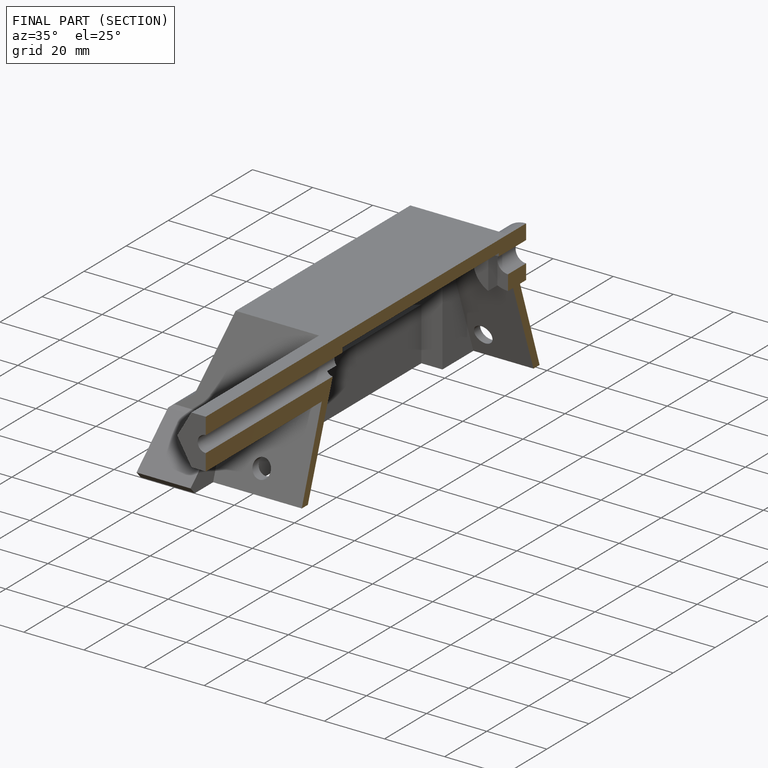
[diagram: finished part — half-section view (interior)]
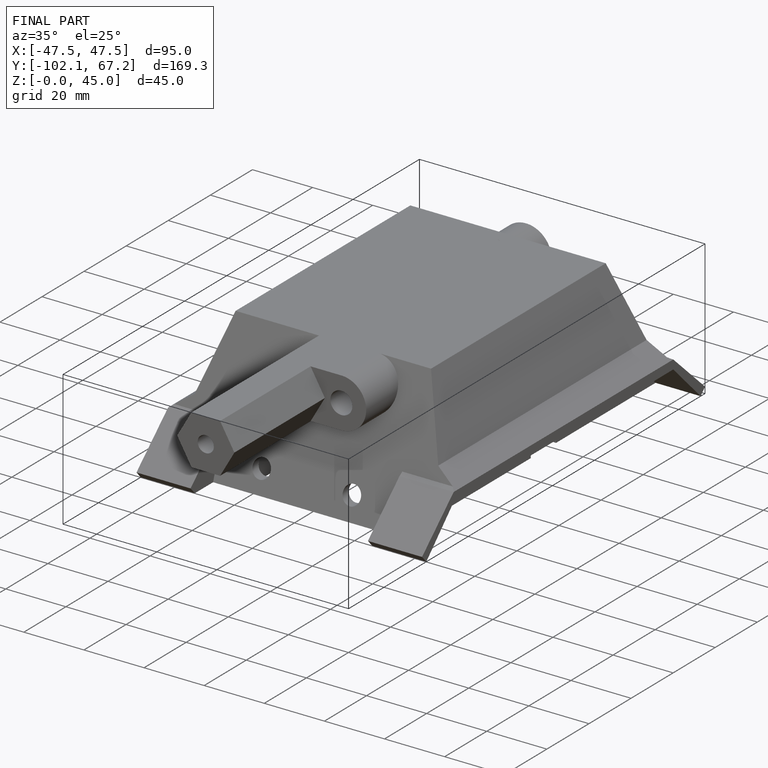
[diagram: finished part — iso view with bounding-box wireframe]
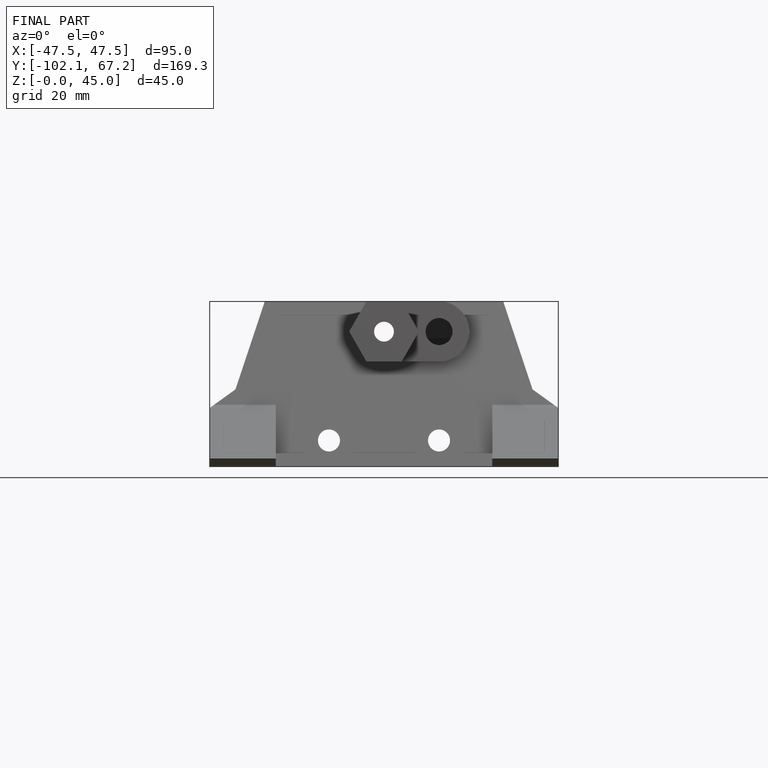
[diagram: finished part — front view with bounding-box wireframe]
